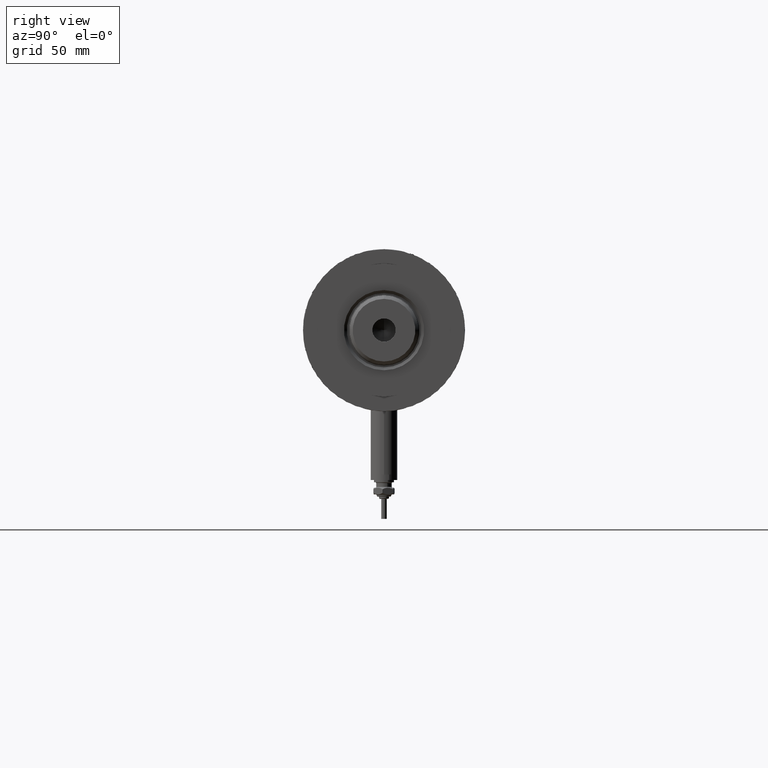
[diagram: clean part render]
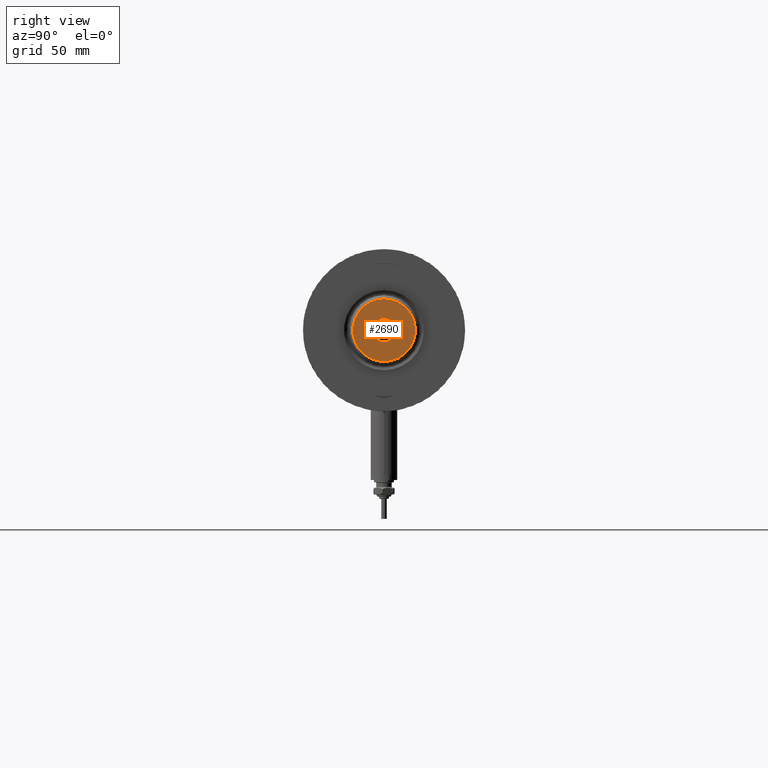
[diagram: same view with one face highlighted and labeled with its STEP entity id]
A machine part, right view. The second image highlights one B-rep face of the part: STEP entity #2690.
In plain terms, the highlighted planar face has unit normal (1, 0, -0).
Its self-contained STEP definition (entity closure, byte-faithful):
#14 = ORIENTED_EDGE ( 'NONE', *, *, #3054, .T. ) ;
#392 = FACE_BOUND ( 'NONE', #5490, .T. ) ;
#416 = ORIENTED_EDGE ( 'NONE', *, *, #5832, .F. ) ;
#481 = VERTEX_POINT ( 'NONE', #3965 ) ;
#830 = VERTEX_POINT ( 'NONE', #4675 ) ;
#889 = AXIS2_PLACEMENT_3D ( 'NONE', #4532, #4443, #5455 ) ;
#1068 = DIRECTION ( 'NONE',  ( 1.000000000000000000, 0.000000000000000000, 0.000000000000000000 ) ) ;
#1894 = DIRECTION ( 'NONE',  ( 1.000000000000000000, 0.000000000000000000, 0.000000000000000000 ) ) ;
#2008 = EDGE_CURVE ( 'NONE', #4323, #830, #4616, .T. ) ;
#2249 = AXIS2_PLACEMENT_3D ( 'NONE', #4347, #2981, #3041 ) ;
#2461 = DIRECTION ( 'NONE',  ( 0.000000000000000000, 0.000000000000000000, 1.000000000000000000 ) ) ;
#2690 = ADVANCED_FACE ( 'NONE', ( #4560, #392 ), #3603, .T. ) ;
#2981 = DIRECTION ( 'NONE',  ( 0.000000000000000000, 0.000000000000000000, 1.000000000000000000 ) ) ;
#3041 = DIRECTION ( 'NONE',  ( 1.000000000000000000, 0.000000000000000000, 0.000000000000000000 ) ) ;
#3054 = EDGE_CURVE ( 'NONE', #3886, #481, #4530, .T. ) ;
#3401 = CARTESIAN_POINT ( 'NONE',  ( 0.000000000000000000, 0.000000000000000000, 255.0000000000000000 ) ) ;
#3603 = PLANE ( 'NONE',  #889 ) ;
#3685 = CARTESIAN_POINT ( 'NONE',  ( 0.000000000000000000, 0.000000000000000000, 255.0000000000000000 ) ) ;
#3749 = DIRECTION ( 'NONE',  ( -0.000000000000000000, -0.000000000000000000, 1.000000000000000000 ) ) ;
#3886 = VERTEX_POINT ( 'NONE', #5157 ) ;
#3965 = CARTESIAN_POINT ( 'NONE',  ( 14.09999999999997300, 1.812477262738080903E-15, 255.0000000000000000 ) ) ;
#4038 = AXIS2_PLACEMENT_3D ( 'NONE', #3685, #3749, #1894 ) ;
#4323 = VERTEX_POINT ( 'NONE', #4898 ) ;
#4347 = CARTESIAN_POINT ( 'NONE',  ( 0.000000000000000000, 0.000000000000000000, 255.0000000000000000 ) ) ;
#4443 = DIRECTION ( 'NONE',  ( 0.000000000000000000, 0.000000000000000000, 1.000000000000000000 ) ) ;
#4530 = CIRCLE ( 'NONE', #5213, 14.09999999999997300 ) ;
#4532 = CARTESIAN_POINT ( 'NONE',  ( 0.000000000000000000, 0.000000000000000000, 255.0000000000000000 ) ) ;
#4560 = FACE_OUTER_BOUND ( 'NONE', #4599, .T. ) ;
#4599 = EDGE_LOOP ( 'NONE', ( #14, #5097 ) ) ;
#4616 = CIRCLE ( 'NONE', #4038, 5.249999999999998224 ) ;
#4675 = CARTESIAN_POINT ( 'NONE',  ( -5.249999999999998224, 6.429395695523602181E-16, 255.0000000000000000 ) ) ;
#4842 = CIRCLE ( 'NONE', #2249, 14.09999999999997300 ) ;
#4898 = CARTESIAN_POINT ( 'NONE',  ( 5.249999999999998224, 0.000000000000000000, 255.0000000000000000 ) ) ;
#4954 = EDGE_CURVE ( 'NONE', #481, #3886, #4842, .T. ) ;
#5097 = ORIENTED_EDGE ( 'NONE', *, *, #4954, .T. ) ;
#5120 = DIRECTION ( 'NONE',  ( 1.000000000000000000, 0.000000000000000000, 0.000000000000000000 ) ) ;
#5155 = AXIS2_PLACEMENT_3D ( 'NONE', #5654, #5195, #1068 ) ;
#5157 = CARTESIAN_POINT ( 'NONE',  ( -14.09999999999997300, 0.000000000000000000, 255.0000000000000000 ) ) ;
#5195 = DIRECTION ( 'NONE',  ( -0.000000000000000000, -0.000000000000000000, 1.000000000000000000 ) ) ;
#5213 = AXIS2_PLACEMENT_3D ( 'NONE', #3401, #2461, #5120 ) ;
#5438 = CIRCLE ( 'NONE', #5155, 5.249999999999998224 ) ;
#5455 = DIRECTION ( 'NONE',  ( 1.000000000000000000, 0.000000000000000000, -0.000000000000000000 ) ) ;
#5490 = EDGE_LOOP ( 'NONE', ( #5667, #416 ) ) ;
#5654 = CARTESIAN_POINT ( 'NONE',  ( 0.000000000000000000, 0.000000000000000000, 255.0000000000000000 ) ) ;
#5667 = ORIENTED_EDGE ( 'NONE', *, *, #2008, .F. ) ;
#5832 = EDGE_CURVE ( 'NONE', #830, #4323, #5438, .T. ) ;